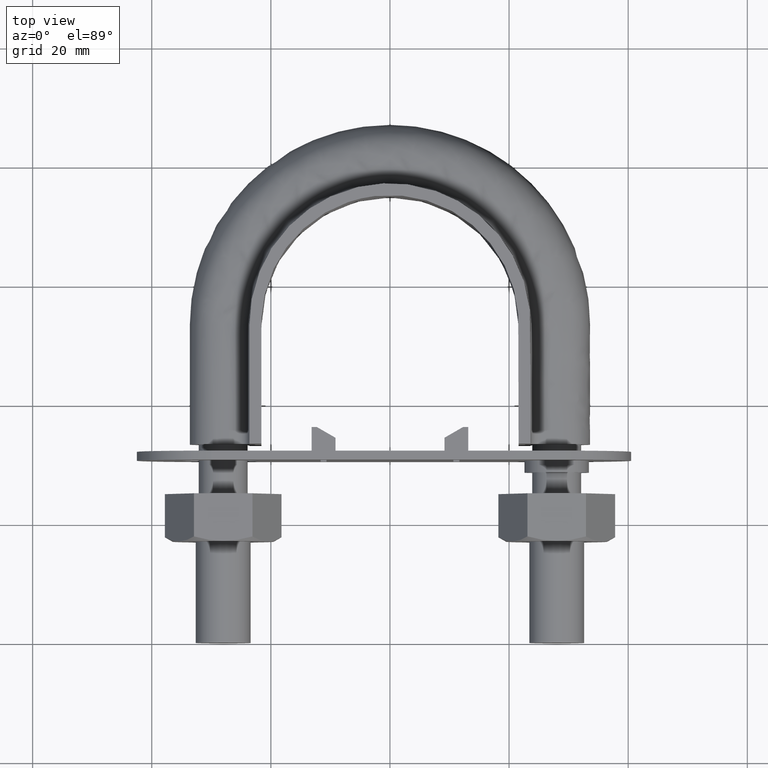
[diagram: clean part render]
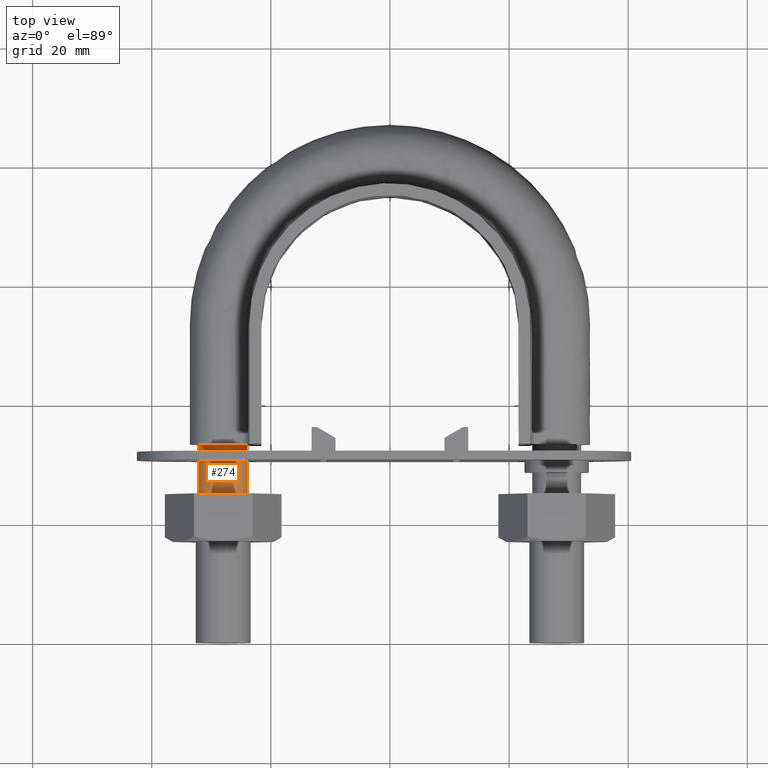
[diagram: same view with one face highlighted and labeled with its STEP entity id]
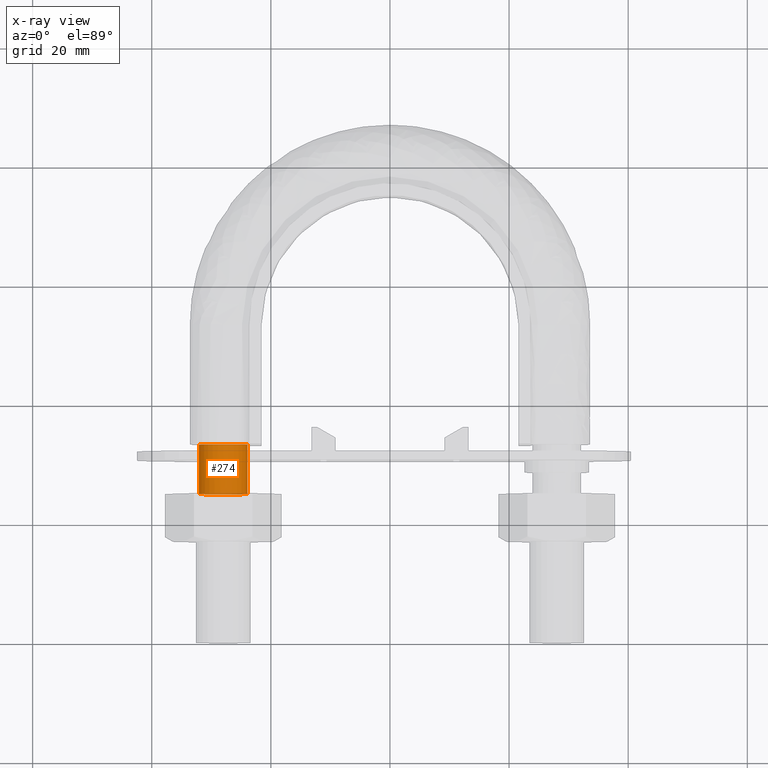
[diagram: x-ray of the same camera — body ghosted, the highlighted face saturated]
A machine part, top view. The second image highlights one B-rep face of the part: STEP entity #274.
The next image is the same camera in x-ray: the body ghosted, the highlighted face saturated — about 0% of this face is hidden behind the body in this view.
In plain terms, the highlighted cylindrical surface (bore or boss wall) has radius 4.1 mm, axis along (-0, -1, -0).
Its self-contained STEP definition (entity closure, byte-faithful):
#274 = ADVANCED_FACE( '', ( #398, #399 ), #400, .T. );
#398 = FACE_OUTER_BOUND( '', #1331, .T. );
#399 = FACE_OUTER_BOUND( '', #1332, .T. );
#400 = CYLINDRICAL_SURFACE( '', #1333, 4.10000000000000 );
#1331 = EDGE_LOOP( '', ( #1778 ) );
#1332 = EDGE_LOOP( '', ( #1779, #1780, #1781, #1782, #1783, #1784, #1785 ) );
#1333 = AXIS2_PLACEMENT_3D( '', #1786, #1787, #1788 );
#1778 = ORIENTED_EDGE( '', *, *, #2559, .T. );
#1779 = ORIENTED_EDGE( '', *, *, #2560, .T. );
#1780 = ORIENTED_EDGE( '', *, *, #2561, .T. );
#1781 = ORIENTED_EDGE( '', *, *, #2562, .T. );
#1782 = ORIENTED_EDGE( '', *, *, #2563, .T. );
#1783 = ORIENTED_EDGE( '', *, *, #2564, .T. );
#1784 = ORIENTED_EDGE( '', *, *, #2565, .T. );
#1785 = ORIENTED_EDGE( '', *, *, #2566, .T. );
#1786 = CARTESIAN_POINT( '', ( -28.0000000000000, 33.3000000000000, 2.02060048380692E-015 ) );
#1787 = DIRECTION( '', ( -2.44921270764475E-016, -1.00000000000000, -6.12303176911189E-017 ) );
#1788 = DIRECTION( '', ( 1.00000000000000, -2.44921270764475E-016, -7.49830360911069E-033 ) );
#2559 = EDGE_CURVE( '', #2809, #2809, #2810, .T. );
#2560 = EDGE_CURVE( '', #2811, #2812, #2813, .T. );
#2561 = EDGE_CURVE( '', #2812, #2814, #2815, .T. );
#2562 = EDGE_CURVE( '', #2814, #2816, #2817, .T. );
#2563 = EDGE_CURVE( '', #2816, #2818, #2819, .T. );
#2564 = EDGE_CURVE( '', #2818, #2820, #2821, .T. );
#2565 = EDGE_CURVE( '', #2820, #2822, #2823, .T. );
#2566 = EDGE_CURVE( '', #2822, #2811, #2824, .T. );
#2809 = VERTEX_POINT( '', #3408 );
#2810 = CIRCLE( '', #3409, 4.10000000000000 );
#2811 = VERTEX_POINT( '', #3410 );
#2812 = VERTEX_POINT( '', #3411 );
#2813 = CIRCLE( '', #3412, 4.10000000000000 );
#2814 = VERTEX_POINT( '', #3413 );
#2815 = CIRCLE( '', #3414, 4.10000000000000 );
#2816 = VERTEX_POINT( '', #3415 );
#2817 = CIRCLE( '', #3416, 4.10000000000000 );
#2818 = VERTEX_POINT( '', #3417 );
#2819 = CIRCLE( '', #3418, 4.10000000000000 );
#2820 = VERTEX_POINT( '', #3419 );
#2821 = CIRCLE( '', #3420, 4.10000000000000 );
#2822 = VERTEX_POINT( '', #3421 );
#2823 = CIRCLE( '', #3422, 4.10000000000000 );
#2824 = CIRCLE( '', #3423, 4.10000000000000 );
#3408 = CARTESIAN_POINT( '', ( -23.9000000000000, 25.0000000000000, 1.51238884697064E-015 ) );
#3409 = AXIS2_PLACEMENT_3D( '', #4058, #4059, #4060 );
#3410 = CARTESIAN_POINT( '', ( -23.9000000000000, 33.3000000000000, 5.34345494379736E-014 ) );
#3411 = CARTESIAN_POINT( '', ( -25.4436918123956, 33.3000000000000, 3.20550907813202 ) );
#3412 = AXIS2_PLACEMENT_3D( '', #4061, #4062, #4063 );
#3413 = CARTESIAN_POINT( '', ( -28.9123358292374, 33.3000000000000, 3.99720443994170 ) );
#3414 = AXIS2_PLACEMENT_3D( '', #4064, #4065, #4066 );
#3415 = CARTESIAN_POINT( '', ( -31.6939723583999, 33.3000000000000, 1.77892333038195 ) );
#3416 = AXIS2_PLACEMENT_3D( '', #4067, #4068, #4069 );
#3417 = CARTESIAN_POINT( '', ( -31.6939723583900, 33.3000000000000, -1.77892333040256 ) );
#3418 = AXIS2_PLACEMENT_3D( '', #4070, #4071, #4072 );
#3419 = CARTESIAN_POINT( '', ( -28.9123358292209, 33.3000000000000, -3.99720443994548 ) );
#3420 = AXIS2_PLACEMENT_3D( '', #4073, #4074, #4075 );
#3421 = CARTESIAN_POINT( '', ( -25.4436918123791, 33.3000000000000, -3.20550907811886 ) );
#3422 = AXIS2_PLACEMENT_3D( '', #4076, #4077, #4078 );
#3423 = AXIS2_PLACEMENT_3D( '', #4079, #4080, #4081 );
#4058 = CARTESIAN_POINT( '', ( -28.0000000000000, 25.0000000000000, 1.51238884697064E-015 ) );
#4059 = DIRECTION( '', ( 2.44921270764475E-016, 1.00000000000000, 6.12303176911189E-017 ) );
#4060 = DIRECTION( '', ( 1.00000000000000, -2.44921270764475E-016, 0.000000000000000 ) );
#4061 = CARTESIAN_POINT( '', ( -28.0000000000000, 33.3000000000000, 2.02060048380692E-015 ) );
#4062 = DIRECTION( '', ( -2.44921270764475E-016, -1.00000000000000, -6.12303176911189E-017 ) );
#4063 = DIRECTION( '', ( 1.00000000000000, -2.44921270764475E-016, -7.49830360911069E-033 ) );
#4064 = CARTESIAN_POINT( '', ( -28.0000000000000, 33.3000000000000, 2.02060048380692E-015 ) );
#4065 = DIRECTION( '', ( -2.44921270764475E-016, -1.00000000000000, -6.12303176911189E-017 ) );
#4066 = DIRECTION( '', ( 1.00000000000000, -2.44921270764475E-016, -7.49830360911069E-033 ) );
#4067 = CARTESIAN_POINT( '', ( -28.0000000000000, 33.3000000000000, 2.02060048380692E-015 ) );
#4068 = DIRECTION( '', ( -2.44921270764475E-016, -1.00000000000000, -6.12303176911189E-017 ) );
#4069 = DIRECTION( '', ( 1.00000000000000, -2.44921270764475E-016, -7.49830360911069E-033 ) );
#4070 = CARTESIAN_POINT( '', ( -28.0000000000000, 33.3000000000000, 2.02060048380692E-015 ) );
#4071 = DIRECTION( '', ( -2.44921270764475E-016, -1.00000000000000, -6.12303176911189E-017 ) );
#4072 = DIRECTION( '', ( 1.00000000000000, -2.44921270764475E-016, -7.49830360911069E-033 ) );
#4073 = CARTESIAN_POINT( '', ( -28.0000000000000, 33.3000000000000, 2.02060048380692E-015 ) );
#4074 = DIRECTION( '', ( -2.44921270764475E-016, -1.00000000000000, -6.12303176911189E-017 ) );
#4075 = DIRECTION( '', ( 1.00000000000000, -2.44921270764475E-016, -7.49830360911069E-033 ) );
#4076 = CARTESIAN_POINT( '', ( -28.0000000000000, 33.3000000000000, 2.02060048380692E-015 ) );
#4077 = DIRECTION( '', ( -2.44921270764475E-016, -1.00000000000000, -6.12303176911189E-017 ) );
#4078 = DIRECTION( '', ( 1.00000000000000, -2.44921270764475E-016, -7.49830360911069E-033 ) );
#4079 = CARTESIAN_POINT( '', ( -28.0000000000000, 33.3000000000000, 2.02060048380692E-015 ) );
#4080 = DIRECTION( '', ( -2.44921270764475E-016, -1.00000000000000, -6.12303176911189E-017 ) );
#4081 = DIRECTION( '', ( 1.00000000000000, -2.44921270764475E-016, -7.49830360911069E-033 ) );